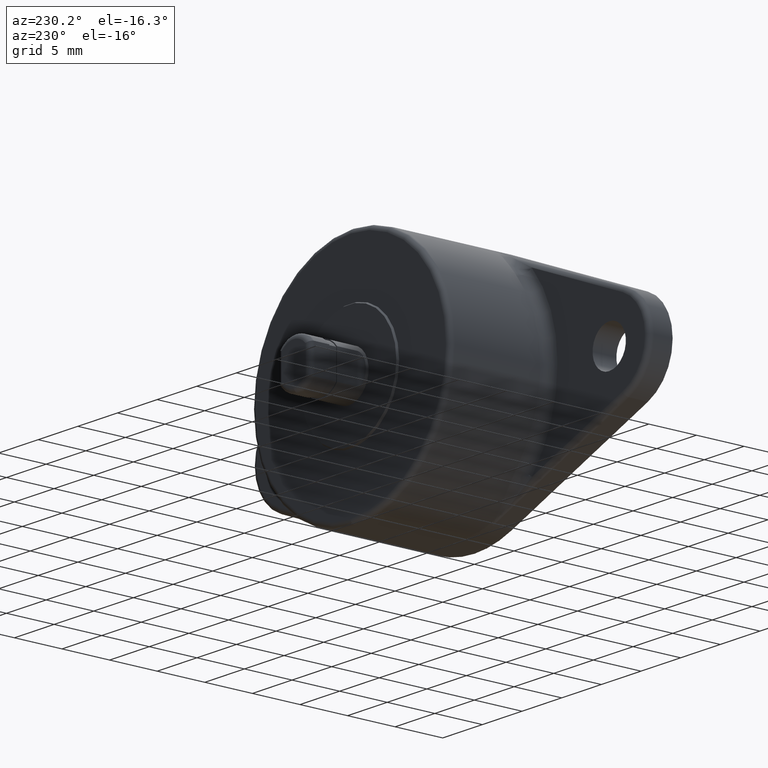
[diagram: clean part render]
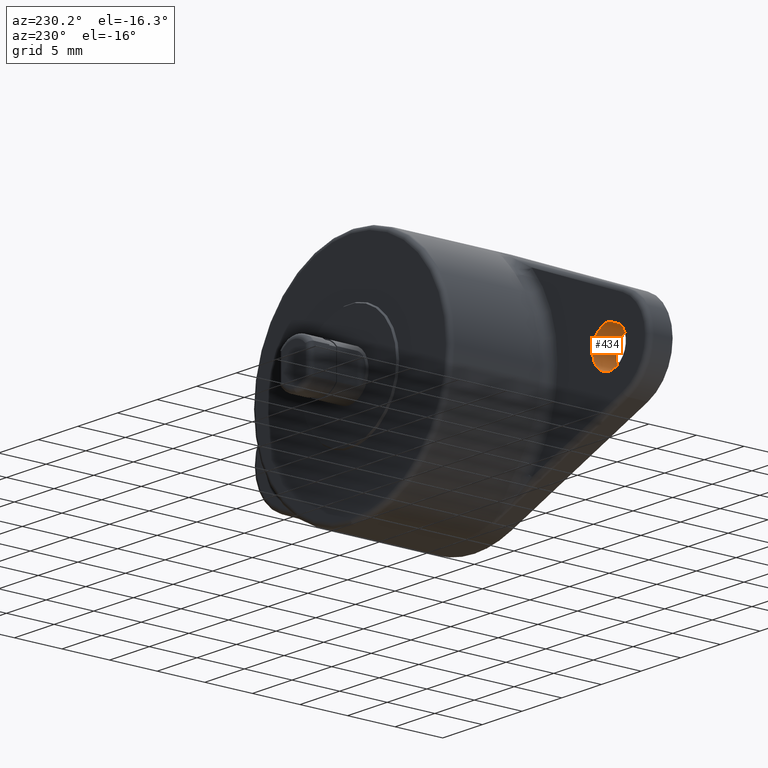
[diagram: same view with one face highlighted and labeled with its STEP entity id]
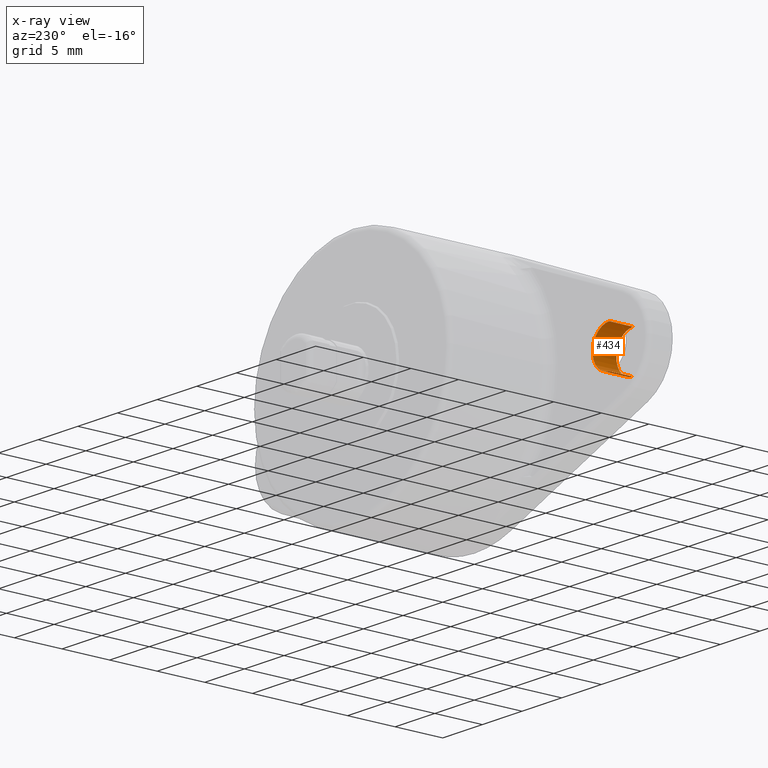
[diagram: x-ray of the same camera — body ghosted, the highlighted face saturated]
A machine part, auxiliary view. The second image highlights one B-rep face of the part: STEP entity #434.
The next image is the same camera in x-ray: the body ghosted, the highlighted face saturated — about 0% of this face is hidden behind the body in this view.
In plain terms, the highlighted cylindrical surface (edge-blend (fillet) strip) has radius 2.1 mm, axis along (-0, -1, -0).
Its self-contained STEP definition (entity closure, byte-faithful):
#32 = CARTESIAN_POINT ( 'NONE',  ( -20.00000000000000000, -1.298125607096191200E-015, -0.0000000000000000000 ) ) ;
#71 = CARTESIAN_POINT ( 'NONE',  ( -20.00000000000000000, -1.298125607096191200E-015, 2.099999999999987200 ) ) ;
#83 = CIRCLE ( 'NONE', #1528, 2.099999999999992500 ) ;
#84 = LINE ( 'NONE', #1038, #1246 ) ;
#102 = ORIENTED_EDGE ( 'NONE', *, *, #1013, .T. ) ;
#138 = EDGE_CURVE ( 'NONE', #1558, #887, #84, .T. ) ;
#192 = DIRECTION ( 'NONE',  ( 0.0000000000000000000, 0.0000000000000000000, -1.000000000000000000 ) ) ;
#306 = ORIENTED_EDGE ( 'NONE', *, *, #511, .T. ) ;
#387 = VERTEX_POINT ( 'NONE', #1086 ) ;
#412 = LINE ( 'NONE', #1129, #769 ) ;
#434 = ADVANCED_FACE ( 'NONE', ( #1605 ), #766, .F. ) ;
#511 = EDGE_CURVE ( 'NONE', #387, #887, #725, .T. ) ;
#520 = DIRECTION ( 'NONE',  ( -0.0000000000000000000, 1.000000000000000000, -0.0000000000000000000 ) ) ;
#532 = DIRECTION ( 'NONE',  ( -0.0000000000000000000, -1.000000000000000000, -0.0000000000000000000 ) ) ;
#540 = DIRECTION ( 'NONE',  ( -0.0000000000000000000, -1.000000000000000000, -0.0000000000000000000 ) ) ;
#702 = ORIENTED_EDGE ( 'NONE', *, *, #138, .F. ) ;
#725 = CIRCLE ( 'NONE', #1893, 2.099999999999987200 ) ;
#766 = CYLINDRICAL_SURFACE ( 'NONE', #1274, 2.099999999999992500 ) ;
#769 = VECTOR ( 'NONE', #1441, 1000.000000000000000 ) ;
#833 = CARTESIAN_POINT ( 'NONE',  ( -20.00000000000000000, 0.0000000000000000000, -0.0000000000000000000 ) ) ;
#883 = ORIENTED_EDGE ( 'NONE', *, *, #1376, .T. ) ;
#887 = VERTEX_POINT ( 'NONE', #71 ) ;
#1005 = CARTESIAN_POINT ( 'NONE',  ( -20.00000000000000000, 2.500000000000000400, -2.099999999999992500 ) ) ;
#1013 = EDGE_CURVE ( 'NONE', #1558, #1773, #83, .T. ) ;
#1038 = CARTESIAN_POINT ( 'NONE',  ( -20.00000000000000000, 0.0000000000000000000, 2.099999999999992500 ) ) ;
#1086 = CARTESIAN_POINT ( 'NONE',  ( -20.00000000000000000, -1.298125607096191200E-015, -2.099999999999987200 ) ) ;
#1099 = DIRECTION ( 'NONE',  ( -0.0000000000000000000, -1.000000000000000000, -0.0000000000000000000 ) ) ;
#1129 = CARTESIAN_POINT ( 'NONE',  ( -20.00000000000000000, 0.0000000000000000000, -2.099999999999992500 ) ) ;
#1246 = VECTOR ( 'NONE', #540, 1000.000000000000000 ) ;
#1274 = AXIS2_PLACEMENT_3D ( 'NONE', #833, #532, #1757 ) ;
#1360 = CARTESIAN_POINT ( 'NONE',  ( -20.00000000000000000, 2.500000000000000400, 2.099999999999992500 ) ) ;
#1376 = EDGE_CURVE ( 'NONE', #1773, #387, #412, .T. ) ;
#1439 = CARTESIAN_POINT ( 'NONE',  ( -20.00000000000000000, 2.500000000000000400, 0.0000000000000000000 ) ) ;
#1441 = DIRECTION ( 'NONE',  ( -0.0000000000000000000, -1.000000000000000000, -0.0000000000000000000 ) ) ;
#1528 = AXIS2_PLACEMENT_3D ( 'NONE', #1439, #520, #1600 ) ;
#1558 = VERTEX_POINT ( 'NONE', #1360 ) ;
#1600 = DIRECTION ( 'NONE',  ( 0.0000000000000000000, 0.0000000000000000000, 1.000000000000000000 ) ) ;
#1605 = FACE_OUTER_BOUND ( 'NONE', #1679, .T. ) ;
#1679 = EDGE_LOOP ( 'NONE', ( #702, #102, #883, #306 ) ) ;
#1757 = DIRECTION ( 'NONE',  ( 0.0000000000000000000, 0.0000000000000000000, -1.000000000000000000 ) ) ;
#1773 = VERTEX_POINT ( 'NONE', #1005 ) ;
#1893 = AXIS2_PLACEMENT_3D ( 'NONE', #32, #1099, #192 ) ;